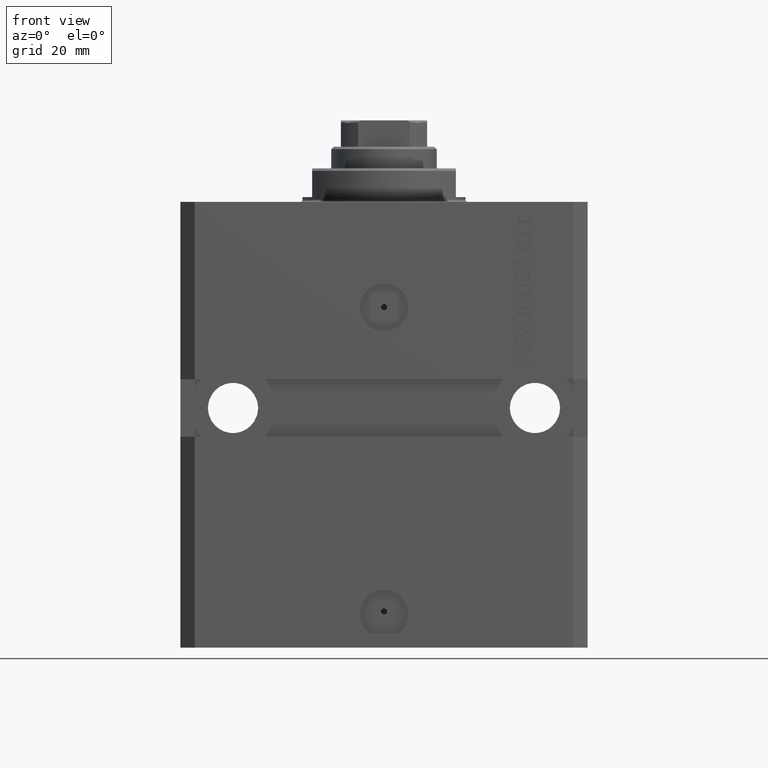
[diagram: clean part render]
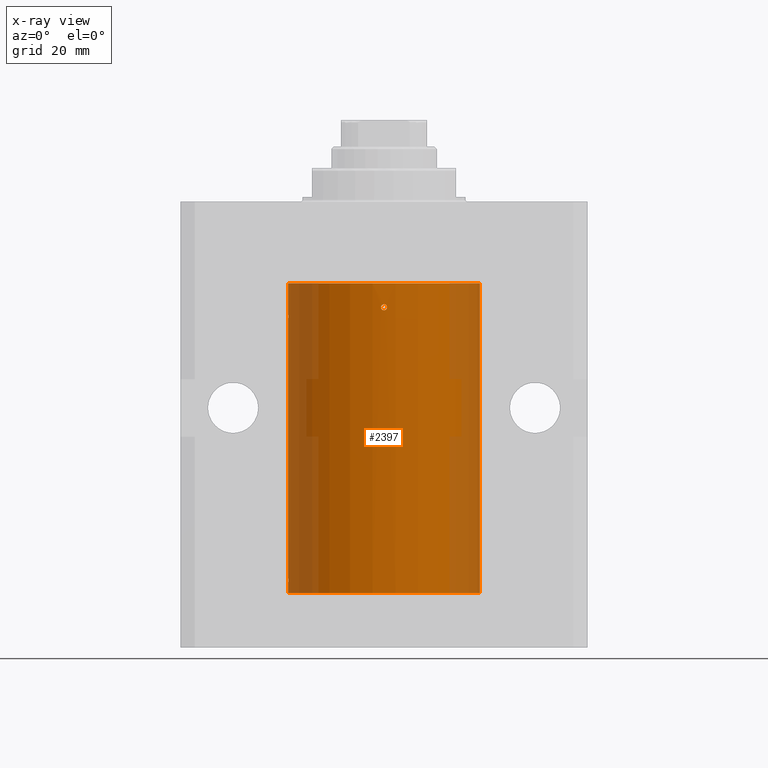
[diagram: x-ray — body ghosted, one internal face saturated and labeled with its STEP entity id]
A machine part, front view, then the same camera in x-ray: the body is ghosted and one INTERNAL B-rep face — a face not visible from any outside direction — is saturated and labeled: STEP entity #2397.
In plain terms, the highlighted cylindrical surface (partial cylindrical patch) has radius 20 mm, axis along (0, 0, 1).
Its self-contained STEP definition (entity closure, byte-faithful):
#355 = CARTESIAN_POINT ( 'NONE',  ( 0.1632920704146597346, -19.99999818881353164, -21.37505795797077823 ) ) ;
#686 = CARTESIAN_POINT ( 'NONE',  ( -19.99257639367449357, -0.5569510432580226933, -24.32709448625169557 ) ) ;
#801 = CARTESIAN_POINT ( 'NONE',  ( -0.6249999999998574474, -19.99023198964934878, -21.83683113816865529 ) ) ;
#940 = DIRECTION ( 'NONE',  ( -0.000000000000000000, -0.000000000000000000, 1.000000000000000000 ) ) ;
#1359 = CARTESIAN_POINT ( 'NONE',  ( -20.00000000000000355, -0.1631318982819147112, -24.62500000000014566 ) ) ;
#1826 = CARTESIAN_POINT ( 'NONE',  ( 20.00000000000000000, 0.000000000000000000, -81.59999999999999432 ) ) ;
#2320 = CARTESIAN_POINT ( 'NONE',  ( 0.5570899181683264256, -19.99257333899569744, -22.32695694742785619 ) ) ;
#2397 = ADVANCED_FACE ( 'NONE', ( #11935, #32790 ), #29822, .F. ) ;
#2486 = CARTESIAN_POINT ( 'NONE',  ( -20.00000000000000000, 2.449293598294706513E-15, -81.59999999999999432 ) ) ;
#3558 = DIRECTION ( 'NONE',  ( -0.000000000000000000, -0.000000000000000000, 1.000000000000000000 ) ) ;
#3846 = VERTEX_POINT ( 'NONE', #9642 ) ;
#4208 = CARTESIAN_POINT ( 'NONE',  ( 0.6087363597162602780, -19.99075850180857117, -21.83635608258754957 ) ) ;
#4343 = CARTESIAN_POINT ( 'NONE',  ( -20.00000000000000000, 2.449293598294706513E-15, -81.59999999999999432 ) ) ;
#4815 = VERTEX_POINT ( 'NONE', #27860 ) ;
#4986 = CARTESIAN_POINT ( 'NONE',  ( -20.00000000000000000, -0.1651542110816374143, -23.37500000000000355 ) ) ;
#5645 = VERTEX_POINT ( 'NONE', #7876 ) ;
#5727 = CARTESIAN_POINT ( 'NONE',  ( -0.1653813832397391104, -19.99999568866902067, -22.62486203736067125 ) ) ;
#5900 = AXIS2_PLACEMENT_3D ( 'NONE', #22222, #29022, #22444 ) ;
#6259 = VECTOR ( 'NONE', #34113, 1000.000000000000000 ) ;
#6462 = LINE ( 'NONE', #20279, #6259 ) ;
#6743 = CIRCLE ( 'NONE', #32087, 20.00000000000000000 ) ;
#7161 = B_SPLINE_CURVE_WITH_KNOTS ( 'NONE', 3,
 ( #36783, #29750, #43579, #40177, #5727, #19538, #33373, #2320, #12755, #26563 ),
 .UNSPECIFIED., .F., .F.,
 ( 4, 2, 2, 2, 4 ),
 ( 0.001954154506134463815, 0.002442582461700956980, 0.002931010417267450145, 0.003419438372833943311, 0.003907866328400436476 ),
 .UNSPECIFIED. ) ;
#7430 = VERTEX_POINT ( 'NONE', #1826 ) ;
#7606 = CARTESIAN_POINT ( 'NONE',  ( -20.00000000000010303, 3.580159286679549072E-13, -79.62500000000332534 ) ) ;
#7709 = CARTESIAN_POINT ( 'NONE',  ( -20.00000000000010303, 3.580159278407742946E-13, -24.62500000000332889 ) ) ;
#7876 = CARTESIAN_POINT ( 'NONE',  ( -20.00000000000000000, 2.449293598294706513E-15, -17.00000000000000000 ) ) ;
#8048 = CARTESIAN_POINT ( 'NONE',  ( -0.1628481006860607039, -20.00000180872260813, -21.37494212087287337 ) ) ;
#8275 = EDGE_LOOP ( 'NONE', ( #25178, #27145 ) ) ;
#8336 = EDGE_CURVE ( 'NONE', #33084, #26701, #38805, .T. ) ;
#9642 = CARTESIAN_POINT ( 'NONE',  ( -0.6250000000033326675, -19.99023198964924219, -21.99999999999967315 ) ) ;
#9781 = CARTESIAN_POINT ( 'NONE',  ( -19.99022768983530440, -0.6251375268966040677, -78.83566303088220195 ) ) ;
#9874 = DIRECTION ( 'NONE',  ( -0.000000000000000000, -0.000000000000000000, 1.000000000000000000 ) ) ;
#11935 = FACE_BOUND ( 'NONE', #8275, .T. ) ;
#12515 = CARTESIAN_POINT ( 'NONE',  ( -19.99255948581289033, -0.5575529953197770894, -78.67383335671266309 ) ) ;
#12620 = VERTEX_POINT ( 'NONE', #7606 ) ;
#12755 = CARTESIAN_POINT ( 'NONE',  ( 0.6250000000000026645, -19.99023198964934522, -22.16515421183406076 ) ) ;
#12760 = B_SPLINE_CURVE_WITH_KNOTS ( 'NONE', 3,
 ( #41604, #39103, #4208, #38660, #35480, #42508, #355, #8048, #20968, #38431, #801, #28006 ),
 .UNSPECIFIED., .F., .F.,
 ( 4, 2, 2, 2, 2, 4 ),
 ( 0.000000000000000000, 0.0002442693132668051579, 0.0004885386265336103158, 0.0009770772530672282210, 0.001465615879600846126, 0.001954154506134463815 ),
 .UNSPECIFIED. ) ;
#13138 = DIRECTION ( 'NONE',  ( -0.000000000000000000, -0.000000000000000000, 1.000000000000000000 ) ) ;
#13187 = EDGE_CURVE ( 'NONE', #12620, #33084, #22981, .T. ) ;
#13366 = LINE ( 'NONE', #2486, #43245 ) ;
#14145 = EDGE_LOOP ( 'NONE', ( #28169, #22580, #42722, #35473, #39485, #25005, #17508, #15364 ) ) ;
#14933 = VECTOR ( 'NONE', #940, 1000.000000000000000 ) ;
#15008 = EDGE_CURVE ( 'NONE', #3846, #4815, #7161, .T. ) ;
#15082 = VERTEX_POINT ( 'NONE', #41075 ) ;
#15227 = DIRECTION ( 'NONE',  ( 0.000000000000000000, 0.000000000000000000, 1.000000000000000000 ) ) ;
#15364 = ORIENTED_EDGE ( 'NONE', *, *, #20931, .F. ) ;
#16722 = CARTESIAN_POINT ( 'NONE',  ( 20.00000000000000000, 0.000000000000000000, -81.59999999999999432 ) ) ;
#17508 = ORIENTED_EDGE ( 'NONE', *, *, #25141, .T. ) ;
#18349 = CARTESIAN_POINT ( 'NONE',  ( -19.99022768983530440, -0.6251375268965866372, -23.83566303088218064 ) ) ;
#18935 = VECTOR ( 'NONE', #3558, 1000.000000000000000 ) ;
#19078 = AXIS2_PLACEMENT_3D ( 'NONE', #41146, #9874, #43652 ) ;
#19538 = CARTESIAN_POINT ( 'NONE',  ( 0.1643369734423495987, -20.00000429769607280, -22.62513752632251851 ) ) ;
#20279 = CARTESIAN_POINT ( 'NONE',  ( -20.00000000000000000, 2.449293598294706513E-15, -81.59999999999999432 ) ) ;
#20421 = EDGE_CURVE ( 'NONE', #42334, #7430, #34215, .T. ) ;
#20931 = EDGE_CURVE ( 'NONE', #7430, #15082, #27355, .T. ) ;
#20968 = CARTESIAN_POINT ( 'NONE',  ( -0.3251162203622516289, -19.99769811469285230, -21.44128795971509405 ) ) ;
#21296 = CARTESIAN_POINT ( 'NONE',  ( -20.00000000000000000, -2.867584836844214272E-15, -23.37500000000000000 ) ) ;
#21530 = CARTESIAN_POINT ( 'NONE',  ( -19.99767054355995555, -0.3263099029014763230, -24.55741108240767190 ) ) ;
#21978 = CARTESIAN_POINT ( 'NONE',  ( -20.00000000000010303, 3.580159278407742946E-13, -24.62500000000332889 ) ) ;
#22222 = CARTESIAN_POINT ( 'NONE',  ( 0.000000000000000000, 0.000000000000000000, -81.59999999999999432 ) ) ;
#22225 = CARTESIAN_POINT ( 'NONE',  ( 0.000000000000000000, 0.000000000000000000, -17.00000000000000000 ) ) ;
#22444 = DIRECTION ( 'NONE',  ( 1.000000000000000000, 0.000000000000000000, 0.000000000000000000 ) ) ;
#22580 = ORIENTED_EDGE ( 'NONE', *, *, #33619, .T. ) ;
#22981 = B_SPLINE_CURVE_WITH_KNOTS ( 'NONE', 3,
 ( #36768, #29957, #26991, #43563, #40828, #9781, #12515, #40163, #23148, #43780 ),
 .UNSPECIFIED., .F., .F.,
 ( 4, 2, 2, 2, 4 ),
 ( 0.001954154509844221576, 0.002442582466643782209, 0.002931010423443342408, 0.003419438380242903041, 0.003907866337042463674 ),
 .UNSPECIFIED. ) ;
#23148 = CARTESIAN_POINT ( 'NONE',  ( -20.00000000000000000, -0.1651542110816439091, -78.37500000000001421 ) ) ;
#23838 = CARTESIAN_POINT ( 'NONE',  ( -20.00000000000000000, -1.124177324826063808E-14, -78.37500000000000000 ) ) ;
#23874 = VERTEX_POINT ( 'NONE', #26217 ) ;
#25005 = ORIENTED_EDGE ( 'NONE', *, *, #38746, .T. ) ;
#25141 = EDGE_CURVE ( 'NONE', #5645, #15082, #6743, .T. ) ;
#25178 = ORIENTED_EDGE ( 'NONE', *, *, #41336, .T. ) ;
#25724 = EDGE_CURVE ( 'NONE', #26701, #23874, #31435, .T. ) ;
#26217 = CARTESIAN_POINT ( 'NONE',  ( -20.00000000000000000, -2.867584836844214272E-15, -23.37500000000000000 ) ) ;
#26563 = CARTESIAN_POINT ( 'NONE',  ( 0.6250000000000026645, -19.99023198964934522, -22.00000000000000000 ) ) ;
#26701 = VERTEX_POINT ( 'NONE', #21978 ) ;
#26991 = CARTESIAN_POINT ( 'NONE',  ( -19.99767054355995555, -0.3263099029014857599, -79.55741108240768256 ) ) ;
#27145 = ORIENTED_EDGE ( 'NONE', *, *, #15008, .T. ) ;
#27355 = LINE ( 'NONE', #16722, #18935 ) ;
#27860 = CARTESIAN_POINT ( 'NONE',  ( 0.6250000000000026645, -19.99023198964934522, -22.00000000000000000 ) ) ;
#28006 = CARTESIAN_POINT ( 'NONE',  ( -0.6250000000033326675, -19.99023198964924219, -21.99999999999967315 ) ) ;
#28169 = ORIENTED_EDGE ( 'NONE', *, *, #20421, .F. ) ;
#29022 = DIRECTION ( 'NONE',  ( 0.000000000000000000, 0.000000000000000000, 1.000000000000000000 ) ) ;
#29025 = DIRECTION ( 'NONE',  ( 1.000000000000000000, 0.000000000000000000, 0.000000000000000000 ) ) ;
#29750 = CARTESIAN_POINT ( 'NONE',  ( -0.6250000000001382228, -19.99023198964934167, -22.16313189841578080 ) ) ;
#29822 = CYLINDRICAL_SURFACE ( 'NONE', #19078, 20.00000000000000000 ) ;
#29957 = CARTESIAN_POINT ( 'NONE',  ( -20.00000000000000355, -0.1631318982819177366, -79.62500000000015632 ) ) ;
#31435 = B_SPLINE_CURVE_WITH_KNOTS ( 'NONE', 3,
 ( #7709, #1359, #21530, #686, #38992, #18349, #39424, #38539, #4986, #21296 ),
 .UNSPECIFIED., .F., .F.,
 ( 4, 2, 2, 2, 4 ),
 ( 0.001954154509844215938, 0.002442582466643772668, 0.002931010423443329831, 0.003419438380242886995, 0.003907866337042443725 ),
 .UNSPECIFIED. ) ;
#31459 = CARTESIAN_POINT ( 'NONE',  ( -20.00000000000000000, 2.449293598294706513E-15, -81.59999999999999432 ) ) ;
#32087 = AXIS2_PLACEMENT_3D ( 'NONE', #22225, #15227, #29025 ) ;
#32790 = FACE_OUTER_BOUND ( 'NONE', #14145, .T. ) ;
#33084 = VERTEX_POINT ( 'NONE', #23838 ) ;
#33373 = CARTESIAN_POINT ( 'NONE',  ( 0.3261666526553446133, -19.99767369487616264, -22.55755299038902706 ) ) ;
#33619 = EDGE_CURVE ( 'NONE', #42334, #12620, #6462, .T. ) ;
#34113 = DIRECTION ( 'NONE',  ( -0.000000000000000000, -0.000000000000000000, 1.000000000000000000 ) ) ;
#34215 = CIRCLE ( 'NONE', #5900, 20.00000000000000000 ) ;
#35473 = ORIENTED_EDGE ( 'NONE', *, *, #8336, .T. ) ;
#35480 = CARTESIAN_POINT ( 'NONE',  ( 0.4995363768272698679, -19.99384383563509360, -21.61563220462100432 ) ) ;
#36768 = CARTESIAN_POINT ( 'NONE',  ( -20.00000000000010303, 3.580159286679549072E-13, -79.62500000000332534 ) ) ;
#36783 = CARTESIAN_POINT ( 'NONE',  ( -0.6250000000033326675, -19.99023198964924219, -21.99999999999967315 ) ) ;
#38431 = CARTESIAN_POINT ( 'NONE',  ( -0.5585582113630487289, -19.99253968778482360, -21.67461956847272830 ) ) ;
#38539 = CARTESIAN_POINT ( 'NONE',  ( -19.99765984516761819, -0.3269569594423944459, -23.44291008943298849 ) ) ;
#38660 = CARTESIAN_POINT ( 'NONE',  ( 0.5459793025363884889, -19.99257092108152634, -21.68496684531850249 ) ) ;
#38746 = EDGE_CURVE ( 'NONE', #23874, #5645, #13366, .T. ) ;
#38805 = LINE ( 'NONE', #4343, #14933 ) ;
#38992 = CARTESIAN_POINT ( 'NONE',  ( -19.99023630310506761, -0.6248620367829522682, -24.16538138329532259 ) ) ;
#39103 = CARTESIAN_POINT ( 'NONE',  ( 0.6250000000000028866, -19.99023198964935233, -21.91740418326171280 ) ) ;
#39424 = CARTESIAN_POINT ( 'NONE',  ( -19.99255948581289744, -0.5575529953197640998, -23.67383335671266309 ) ) ;
#39485 = ORIENTED_EDGE ( 'NONE', *, *, #25724, .T. ) ;
#40163 = CARTESIAN_POINT ( 'NONE',  ( -19.99765984516762174, -0.3269569594424049930, -78.44291008943298493 ) ) ;
#40177 = CARTESIAN_POINT ( 'NONE',  ( -0.3270944962368909081, -19.99765679051705902, -22.55695103748945129 ) ) ;
#40828 = CARTESIAN_POINT ( 'NONE',  ( -19.99023630310506761, -0.6248620367829604838, -79.16538138329534036 ) ) ;
#41075 = CARTESIAN_POINT ( 'NONE',  ( 20.00000000000000000, 0.000000000000000000, -17.00000000000000000 ) ) ;
#41146 = CARTESIAN_POINT ( 'NONE',  ( 0.000000000000000000, 0.000000000000000000, -81.59999999999999432 ) ) ;
#41336 = EDGE_CURVE ( 'NONE', #4815, #3846, #12760, .T. ) ;
#41604 = CARTESIAN_POINT ( 'NONE',  ( 0.6250000000000026645, -19.99023198964934522, -22.00000000000000000 ) ) ;
#42334 = VERTEX_POINT ( 'NONE', #31459 ) ;
#42508 = CARTESIAN_POINT ( 'NONE',  ( 0.3265143537867915002, -19.99766736494331809, -21.44267231150418240 ) ) ;
#42722 = ORIENTED_EDGE ( 'NONE', *, *, #13187, .T. ) ;
#43245 = VECTOR ( 'NONE', #13138, 1000.000000000000000 ) ;
#43563 = CARTESIAN_POINT ( 'NONE',  ( -19.99257639367449357, -0.5569510432580352388, -79.32709448625169557 ) ) ;
#43579 = CARTESIAN_POINT ( 'NONE',  ( -0.5574110886242996665, -19.99256263711735215, -22.32630989244538711 ) ) ;
#43652 = DIRECTION ( 'NONE',  ( 1.000000000000000000, 0.000000000000000000, 0.000000000000000000 ) ) ;
#43780 = CARTESIAN_POINT ( 'NONE',  ( -20.00000000000000000, -1.124177324826063808E-14, -78.37500000000000000 ) ) ;